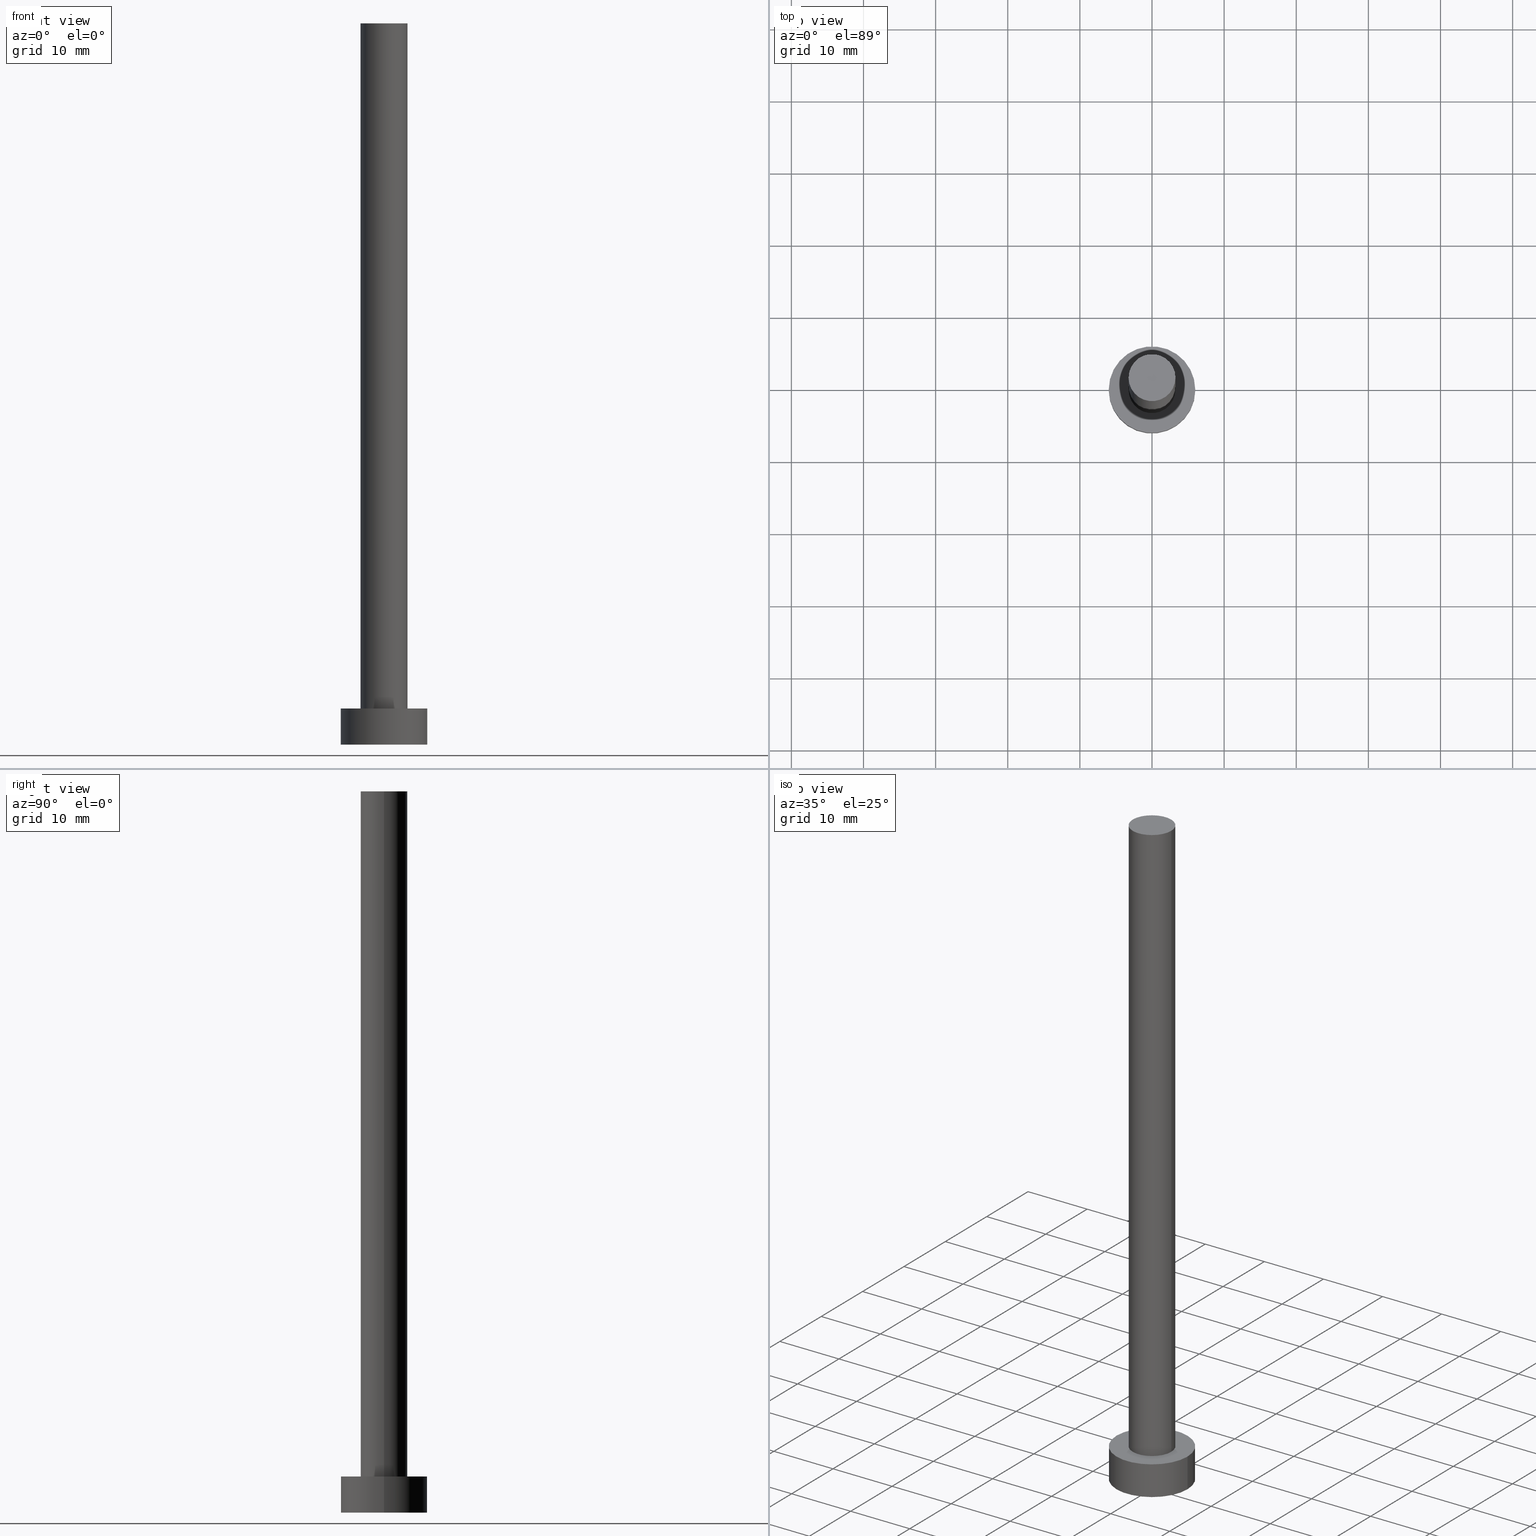
[diagram: canonical four-view strip — front | top / right | iso, engineering-drawing reading convention]
A machine part, canonical four-view strip (front | top / right | iso — engineering-drawing reading convention). The complete STEP part file that produces these views, byte-faithful:
ISO-10303-21;
HEADER;
FILE_DESCRIPTION (( 'STEP AP203' ),
    '1' );
FILE_NAME ('59e7.STEP',
    '2023-02-13T14:04:50',
    ( '' ),
    ( '' ),
    'SwSTEP 2.0',
    'SolidWorks 2019',
    '' );
FILE_SCHEMA (( 'CONFIG_CONTROL_DESIGN' ));
ENDSEC;

DATA;
#1 = AXIS2_PLACEMENT_3D ( 'NONE', #159, #96, #218 ) ;
#2 = DIRECTION ( 'NONE',  ( -0.000000000000000000, -0.000000000000000000, -1.000000000000000000 ) ) ;
#3 = CIRCLE ( 'NONE', #171, 6.000000000000000888 ) ;
#4 =( NAMED_UNIT ( * ) SI_UNIT ( $, .STERADIAN. ) SOLID_ANGLE_UNIT ( ) );
#5 = PRODUCT_RELATED_PRODUCT_CATEGORY ( 'detail', '', ( #63 ) ) ;
#6 = COORDINATED_UNIVERSAL_TIME_OFFSET ( 1, 0, .AHEAD. ) ;
#7 = DIRECTION ( 'NONE',  ( 1.000000000000000000, 0.000000000000000000, 0.000000000000000000 ) ) ;
#8 = PERSON ( 'NEUR�EN�', 'NEUR�EN�', 'NEUR�EN�', ('NEUR�EN�'), ('NEUR�EN�'), ('NEUR�EN�') ) ;
#9 = CIRCLE ( 'NONE', #192, 6.000000000000000888 ) ;
#10 = CC_DESIGN_APPROVAL ( #88, ( #158 ) ) ;
#11 = ORIENTED_EDGE ( 'NONE', *, *, #82, .T. ) ;
#12 = EDGE_CURVE ( 'NONE', #200, #25, #251, .T. ) ;
#13 = CARTESIAN_POINT ( 'NONE',  ( 0.000000000000000000, 0.000000000000000000, 0.000000000000000000 ) ) ;
#14 = CARTESIAN_POINT ( 'NONE',  ( 0.000000000000000000, 0.000000000000000000, 5.000000000000000000 ) ) ;
#15 = PERSON_AND_ORGANIZATION ( #8, #133 ) ;
#16 = PLANE ( 'NONE',  #100 ) ;
#17 = ADVANCED_FACE ( 'NONE', ( #115 ), #16, .T. ) ;
#18 = CIRCLE ( 'NONE', #142, 3.250000000000000444 ) ;
#19 = LOCAL_TIME ( 15, 4, 50.00000000000000000, #6 ) ;
#20 = FACE_BOUND ( 'NONE', #134, .T. ) ;
#21 = ORIENTED_EDGE ( 'NONE', *, *, #210, .T. ) ;
#22 = CC_DESIGN_DATE_AND_TIME_ASSIGNMENT ( #220, #62, ( #26 ) ) ;
#23 = COORDINATED_UNIVERSAL_TIME_OFFSET ( 1, 0, .AHEAD. ) ;
#24 = CYLINDRICAL_SURFACE ( 'NONE', #38, 3.250000000000000444 ) ;
#25 = VERTEX_POINT ( 'NONE', #214 ) ;
#26 = SECURITY_CLASSIFICATION ( '', '', #156 ) ;
#27 = PERSON_AND_ORGANIZATION ( #8, #133 ) ;
#28 = CARTESIAN_POINT ( 'NONE',  ( 0.000000000000000000, 0.000000000000000000, 5.000000000000000000 ) ) ;
#29 = CARTESIAN_POINT ( 'NONE',  ( 3.250000000000000444, 3.980102097228898231E-16, 100.0000000000000000 ) ) ;
#30 = APPROVAL_PERSON_ORGANIZATION ( #27, #120, #188 ) ;
#31 = EDGE_LOOP ( 'NONE', ( #11, #211 ) ) ;
#32 = PERSON_AND_ORGANIZATION ( #8, #133 ) ;
#33 = CC_DESIGN_APPROVAL ( #68, ( #198 ) ) ;
#34 = ORIENTED_EDGE ( 'NONE', *, *, #196, .F. ) ;
#35 = VERTEX_POINT ( 'NONE', #235 ) ;
#36 = DIRECTION ( 'NONE',  ( -0.000000000000000000, -0.000000000000000000, -1.000000000000000000 ) ) ;
#37 = CC_DESIGN_PERSON_AND_ORGANIZATION_ASSIGNMENT ( #202, #255, ( #26 ) ) ;
#38 = AXIS2_PLACEMENT_3D ( 'NONE', #140, #91, #72 ) ;
#39 = PRODUCT_DEFINITION_SHAPE ( 'NONE', 'NONE',  #158 ) ;
#40 = ORIENTED_EDGE ( 'NONE', *, *, #210, .F. ) ;
#41 = CARTESIAN_POINT ( 'NONE',  ( 0.000000000000000000, 0.000000000000000000, 5.000000000000000000 ) ) ;
#42 = APPROVAL_STATUS ( 'not_yet_approved' ) ;
#43 = DIRECTION ( 'NONE',  ( 1.000000000000000000, 0.000000000000000000, -0.000000000000000000 ) ) ;
#44 = FACE_OUTER_BOUND ( 'NONE', #195, .T. ) ;
#45 = ORIENTED_EDGE ( 'NONE', *, *, #104, .T. ) ;
#46 = FACE_OUTER_BOUND ( 'NONE', #74, .T. ) ;
#47 = DIRECTION ( 'NONE',  ( -0.000000000000000000, -0.000000000000000000, -1.000000000000000000 ) ) ;
#48 = EDGE_CURVE ( 'NONE', #224, #200, #92, .T. ) ;
#49 = EDGE_CURVE ( 'NONE', #65, #35, #106, .T. ) ;
#50 = APPLICATION_PROTOCOL_DEFINITION ( 'international standard', 'config_control_design', 1994, #153 ) ;
#51 = EDGE_LOOP ( 'NONE', ( #80, #154, #199, #71 ) ) ;
#52 = CARTESIAN_POINT ( 'NONE',  ( -3.250000000000000444, 0.000000000000000000, 100.0000000000000000 ) ) ;
#53 = PERSON_AND_ORGANIZATION_ROLE ( 'creator' ) ;
#54 = LINE ( 'NONE', #252, #136 ) ;
#55 = DIRECTION ( 'NONE',  ( 0.000000000000000000, 0.000000000000000000, 1.000000000000000000 ) ) ;
#56 = ADVANCED_BREP_SHAPE_REPRESENTATION ( '59e7', ( #162, #176 ), #83 ) ;
#57 = CALENDAR_DATE ( 2023, 13, 2 ) ;
#58 = CARTESIAN_POINT ( 'NONE',  ( -3.250000000000000444, 0.000000000000000000, 100.0000000000000000 ) ) ;
#59 = CALENDAR_DATE ( 2023, 13, 2 ) ;
#60 = DIRECTION ( 'NONE',  ( 1.000000000000000000, 0.000000000000000000, -0.000000000000000000 ) ) ;
#61 = CARTESIAN_POINT ( 'NONE',  ( 0.000000000000000000, 0.000000000000000000, 100.0000000000000000 ) ) ;
#62 = DATE_TIME_ROLE ( 'classification_date' ) ;
#63 = PRODUCT ( '59e7', '59e7', '', ( #254 ) ) ;
#64 = FACE_OUTER_BOUND ( 'NONE', #208, .T. ) ;
#65 = VERTEX_POINT ( 'NONE', #128 ) ;
#66 = DIRECTION ( 'NONE',  ( 0.000000000000000000, 0.000000000000000000, 1.000000000000000000 ) ) ;
#67 = UNCERTAINTY_MEASURE_WITH_UNIT (LENGTH_MEASURE( 1.000000000000000082E-05 ), #145, 'distance_accuracy_value', 'NONE');
#68 = APPROVAL ( #215, 'NEUR�EN�' ) ;
#69 = DATE_AND_TIME ( #101, #160 ) ;
#70 = VECTOR ( 'NONE', #237, 1000.000000000000000 ) ;
#71 = ORIENTED_EDGE ( 'NONE', *, *, #12, .F. ) ;
#72 = DIRECTION ( 'NONE',  ( -1.000000000000000000, 0.000000000000000000, 0.000000000000000000 ) ) ;
#73 = DATE_AND_TIME ( #57, #182 ) ;
#74 = EDGE_LOOP ( 'NONE', ( #187, #234, #184, #99 ) ) ;
#75 = LOCAL_TIME ( 15, 4, 50.00000000000000000, #107 ) ;
#76 = PERSON_AND_ORGANIZATION_ROLE ( 'design_supplier' ) ;
#77 = DIRECTION ( 'NONE',  ( 1.000000000000000000, 0.000000000000000000, -0.000000000000000000 ) ) ;
#78 = COORDINATED_UNIVERSAL_TIME_OFFSET ( 1, 0, .AHEAD. ) ;
#79 = LINE ( 'NONE', #213, #70 ) ;
#80 = ORIENTED_EDGE ( 'NONE', *, *, #48, .F. ) ;
#81 = COORDINATED_UNIVERSAL_TIME_OFFSET ( 1, 0, .AHEAD. ) ;
#82 = EDGE_CURVE ( 'NONE', #200, #224, #9, .T. ) ;
#83 =( GEOMETRIC_REPRESENTATION_CONTEXT ( 3 ) GLOBAL_UNCERTAINTY_ASSIGNED_CONTEXT ( ( #67 ) ) GLOBAL_UNIT_ASSIGNED_CONTEXT ( ( #145, #138, #4 ) ) REPRESENTATION_CONTEXT ( 'NONE', 'WORKASPACE' ) );
#84 = DIRECTION ( 'NONE',  ( 0.000000000000000000, 0.000000000000000000, 1.000000000000000000 ) ) ;
#85 = DATE_AND_TIME ( #193, #75 ) ;
#86 = DIRECTION ( 'NONE',  ( 1.000000000000000000, 0.000000000000000000, 0.000000000000000000 ) ) ;
#87 = CC_DESIGN_PERSON_AND_ORGANIZATION_ASSIGNMENT ( #194, #53, ( #198 ) ) ;
#88 = APPROVAL ( #122, 'NEUR�EN�' ) ;
#89 = AXIS2_PLACEMENT_3D ( 'NONE', #204, #84, #43 ) ;
#90 = PERSON_AND_ORGANIZATION ( #8, #133 ) ;
#91 = DIRECTION ( 'NONE',  ( -0.000000000000000000, -0.000000000000000000, -1.000000000000000000 ) ) ;
#92 = CIRCLE ( 'NONE', #1, 6.000000000000000888 ) ;
#93 = APPLICATION_PROTOCOL_DEFINITION ( 'international standard', 'config_control_design', 1994, #116 ) ;
#94 = DIRECTION ( 'NONE',  ( 0.000000000000000000, 0.000000000000000000, 1.000000000000000000 ) ) ;
#95 = ORIENTED_EDGE ( 'NONE', *, *, #127, .T. ) ;
#96 = DIRECTION ( 'NONE',  ( 0.000000000000000000, 0.000000000000000000, 1.000000000000000000 ) ) ;
#97 = APPROVAL_ROLE ( '' ) ;
#98 = FACE_OUTER_BOUND ( 'NONE', #31, .T. ) ;
#99 = ORIENTED_EDGE ( 'NONE', *, *, #175, .T. ) ;
#100 = AXIS2_PLACEMENT_3D ( 'NONE', #236, #94, #77 ) ;
#101 = CALENDAR_DATE ( 2023, 13, 2 ) ;
#102 = ORIENTED_EDGE ( 'NONE', *, *, #175, .F. ) ;
#103 = DIRECTION ( 'NONE',  ( -1.000000000000000000, 0.000000000000000000, 0.000000000000000000 ) ) ;
#104 = EDGE_CURVE ( 'NONE', #157, #178, #18, .T. ) ;
#105 = APPROVAL_ROLE ( '' ) ;
#106 = CIRCLE ( 'NONE', #244, 3.250000000000000444 ) ;
#107 = COORDINATED_UNIVERSAL_TIME_OFFSET ( 1, 0, .AHEAD. ) ;
#108 = CC_DESIGN_APPROVAL ( #120, ( #26 ) ) ;
#109 = CARTESIAN_POINT ( 'NONE',  ( 0.000000000000000000, 0.000000000000000000, 5.000000000000000000 ) ) ;
#110 = APPROVAL_DATE_TIME ( #73, #68 ) ;
#111 = ORIENTED_EDGE ( 'NONE', *, *, #207, .F. ) ;
#112 = PLANE ( 'NONE',  #152 ) ;
#113 = ADVANCED_FACE ( 'NONE', ( #44 ), #173, .T. ) ;
#114 = DIRECTION ( 'NONE',  ( 1.000000000000000000, 0.000000000000000000, 0.000000000000000000 ) ) ;
#115 = FACE_OUTER_BOUND ( 'NONE', #197, .T. ) ;
#116 = APPLICATION_CONTEXT ( 'configuration controlled 3d designs of mechanical parts and assemblies' ) ;
#117 = CARTESIAN_POINT ( 'NONE',  ( 6.000000000000000888, 7.347880794884120722E-16, 5.000000000000000000 ) ) ;
#118 = DIRECTION ( 'NONE',  ( 0.000000000000000000, 0.000000000000000000, 1.000000000000000000 ) ) ;
#119 = AXIS2_PLACEMENT_3D ( 'NONE', #109, #131, #216 ) ;
#120 = APPROVAL ( #42, 'NEUR�EN�' ) ;
#121 = CARTESIAN_POINT ( 'NONE',  ( 0.000000000000000000, 0.000000000000000000, 0.000000000000000000 ) ) ;
#122 = APPROVAL_STATUS ( 'not_yet_approved' ) ;
#123 = VECTOR ( 'NONE', #248, 1000.000000000000000 ) ;
#124 = CALENDAR_DATE ( 2023, 13, 2 ) ;
#125 = DIRECTION ( 'NONE',  ( -1.000000000000000000, 0.000000000000000000, 0.000000000000000000 ) ) ;
#126 = DIRECTION ( 'NONE',  ( 0.000000000000000000, 0.000000000000000000, 1.000000000000000000 ) ) ;
#127 = EDGE_CURVE ( 'NONE', #178, #157, #169, .T. ) ;
#128 = CARTESIAN_POINT ( 'NONE',  ( 3.250000000000000444, 3.980102097228898231E-16, 5.000000000000000000 ) ) ;
#129 = CARTESIAN_POINT ( 'NONE',  ( -6.000000000000000888, 0.000000000000000000, 5.000000000000000000 ) ) ;
#130 = EDGE_CURVE ( 'NONE', #178, #35, #170, .T. ) ;
#131 = DIRECTION ( 'NONE',  ( 0.000000000000000000, 0.000000000000000000, 1.000000000000000000 ) ) ;
#132 = AXIS2_PLACEMENT_3D ( 'NONE', #139, #2, #103 ) ;
#133 = ORGANIZATION ( 'NEUR�EN�', 'NEUR�EN�', '' ) ;
#134 = EDGE_LOOP ( 'NONE', ( #111, #166 ) ) ;
#135 = VECTOR ( 'NONE', #146, 1000.000000000000000 ) ;
#136 = VECTOR ( 'NONE', #36, 1000.000000000000000 ) ;
#137 = CC_DESIGN_PERSON_AND_ORGANIZATION_ASSIGNMENT ( #32, #76, ( #198 ) ) ;
#138 =( NAMED_UNIT ( * ) PLANE_ANGLE_UNIT ( ) SI_UNIT ( $, .RADIAN. ) );
#139 = CARTESIAN_POINT ( 'NONE',  ( 0.000000000000000000, 0.000000000000000000, 100.0000000000000000 ) ) ;
#140 = CARTESIAN_POINT ( 'NONE',  ( 0.000000000000000000, 0.000000000000000000, 100.0000000000000000 ) ) ;
#141 = ORIENTED_EDGE ( 'NONE', *, *, #104, .F. ) ;
#142 = AXIS2_PLACEMENT_3D ( 'NONE', #61, #223, #164 ) ;
#143 = CC_DESIGN_PERSON_AND_ORGANIZATION_ASSIGNMENT ( #15, #250, ( #63 ) ) ;
#144 = AXIS2_PLACEMENT_3D ( 'NONE', #28, #189, #165 ) ;
#145 =( LENGTH_UNIT ( ) NAMED_UNIT ( * ) SI_UNIT ( .MILLI., .METRE. ) );
#146 = DIRECTION ( 'NONE',  ( -0.000000000000000000, -0.000000000000000000, -1.000000000000000000 ) ) ;
#147 = ORIENTED_EDGE ( 'NONE', *, *, #130, .T. ) ;
#148 = CYLINDRICAL_SURFACE ( 'NONE', #239, 6.000000000000000888 ) ;
#149 = CARTESIAN_POINT ( 'NONE',  ( 0.000000000000000000, 0.000000000000000000, 5.000000000000000000 ) ) ;
#150 = CIRCLE ( 'NONE', #180, 6.000000000000000888 ) ;
#151 = APPROVAL_DATE_TIME ( #69, #120 ) ;
#152 = AXIS2_PLACEMENT_3D ( 'NONE', #14, #249, #60 ) ;
#153 = APPLICATION_CONTEXT ( 'configuration controlled 3d designs of mechanical parts and assemblies' ) ;
#154 = ORIENTED_EDGE ( 'NONE', *, *, #212, .T. ) ;
#155 = PERSON_AND_ORGANIZATION ( #8, #133 ) ;
#156 = SECURITY_CLASSIFICATION_LEVEL ( 'unclassified' ) ;
#157 = VERTEX_POINT ( 'NONE', #29 ) ;
#158 = PRODUCT_DEFINITION ( 'NEZN�M�', '', #198, #226 ) ;
#159 = CARTESIAN_POINT ( 'NONE',  ( 0.000000000000000000, 0.000000000000000000, 5.000000000000000000 ) ) ;
#160 = LOCAL_TIME ( 15, 4, 50.00000000000000000, #23 ) ;
#161 = ADVANCED_FACE ( 'NONE', ( #46 ), #148, .T. ) ;
#162 = MANIFOLD_SOLID_BREP ( 'P�idat vysunut�m3', #227 ) ;
#163 = CYLINDRICAL_SURFACE ( 'NONE', #144, 6.000000000000000888 ) ;
#164 = DIRECTION ( 'NONE',  ( 1.000000000000000000, 0.000000000000000000, 0.000000000000000000 ) ) ;
#165 = DIRECTION ( 'NONE',  ( -1.000000000000000000, 0.000000000000000000, 0.000000000000000000 ) ) ;
#166 = ORIENTED_EDGE ( 'NONE', *, *, #49, .F. ) ;
#167 = CC_DESIGN_PERSON_AND_ORGANIZATION_ASSIGNMENT ( #174, #209, ( #158 ) ) ;
#168 = CARTESIAN_POINT ( 'NONE',  ( 0.000000000000000000, 0.000000000000000000, 100.0000000000000000 ) ) ;
#169 = CIRCLE ( 'NONE', #246, 3.250000000000000444 ) ;
#170 = LINE ( 'NONE', #58, #135 ) ;
#171 = AXIS2_PLACEMENT_3D ( 'NONE', #13, #242, #7 ) ;
#172 = ORIENTED_EDGE ( 'NONE', *, *, #127, .F. ) ;
#173 = CYLINDRICAL_SURFACE ( 'NONE', #132, 3.250000000000000444 ) ;
#174 = PERSON_AND_ORGANIZATION ( #8, #133 ) ;
#175 = EDGE_CURVE ( 'NONE', #25, #177, #150, .T. ) ;
#176 = AXIS2_PLACEMENT_3D ( 'NONE', #238, #118, #114 ) ;
#177 = VERTEX_POINT ( 'NONE', #179 ) ;
#178 = VERTEX_POINT ( 'NONE', #52 ) ;
#179 = CARTESIAN_POINT ( 'NONE',  ( 6.000000000000000888, 7.347880794884120722E-16, 0.000000000000000000 ) ) ;
#180 = AXIS2_PLACEMENT_3D ( 'NONE', #121, #219, #201 ) ;
#181 = CARTESIAN_POINT ( 'NONE',  ( -6.000000000000000888, 0.000000000000000000, 5.000000000000000000 ) ) ;
#182 = LOCAL_TIME ( 15, 4, 50.00000000000000000, #78 ) ;
#183 = ORIENTED_EDGE ( 'NONE', *, *, #207, .T. ) ;
#184 = ORIENTED_EDGE ( 'NONE', *, *, #12, .T. ) ;
#185 = DIRECTION ( 'NONE',  ( 1.000000000000000000, 0.000000000000000000, 0.000000000000000000 ) ) ;
#186 = ADVANCED_FACE ( 'NONE', ( #245 ), #24, .T. ) ;
#187 = ORIENTED_EDGE ( 'NONE', *, *, #212, .F. ) ;
#188 = APPROVAL_ROLE ( '' ) ;
#189 = DIRECTION ( 'NONE',  ( -0.000000000000000000, -0.000000000000000000, -1.000000000000000000 ) ) ;
#190 = APPROVAL_PERSON_ORGANIZATION ( #155, #88, #105 ) ;
#191 = DATE_AND_TIME ( #124, #19 ) ;
#192 = AXIS2_PLACEMENT_3D ( 'NONE', #41, #55, #253 ) ;
#193 = CALENDAR_DATE ( 2023, 13, 2 ) ;
#194 = PERSON_AND_ORGANIZATION ( #8, #133 ) ;
#195 = EDGE_LOOP ( 'NONE', ( #141, #21, #233, #231 ) ) ;
#196 = EDGE_CURVE ( 'NONE', #177, #25, #3, .T. ) ;
#197 = EDGE_LOOP ( 'NONE', ( #95, #45 ) ) ;
#198 = PRODUCT_DEFINITION_FORMATION_WITH_SPECIFIED_SOURCE ( 'LIBOVOLN�', '', #63, .NOT_KNOWN. ) ;
#199 = ORIENTED_EDGE ( 'NONE', *, *, #196, .T. ) ;
#200 = VERTEX_POINT ( 'NONE', #129 ) ;
#201 = DIRECTION ( 'NONE',  ( 1.000000000000000000, 0.000000000000000000, 0.000000000000000000 ) ) ;
#202 = PERSON_AND_ORGANIZATION ( #8, #133 ) ;
#203 = CIRCLE ( 'NONE', #119, 3.250000000000000444 ) ;
#204 = CARTESIAN_POINT ( 'NONE',  ( 0.000000000000000000, 0.000000000000000000, 0.000000000000000000 ) ) ;
#205 = DATE_TIME_ROLE ( 'creation_date' ) ;
#206 = FACE_OUTER_BOUND ( 'NONE', #51, .T. ) ;
#207 = EDGE_CURVE ( 'NONE', #35, #65, #203, .T. ) ;
#208 = EDGE_LOOP ( 'NONE', ( #102, #34 ) ) ;
#209 = PERSON_AND_ORGANIZATION_ROLE ( 'creator' ) ;
#210 = EDGE_CURVE ( 'NONE', #157, #65, #54, .T. ) ;
#211 = ORIENTED_EDGE ( 'NONE', *, *, #48, .T. ) ;
#212 = EDGE_CURVE ( 'NONE', #224, #177, #79, .T. ) ;
#213 = CARTESIAN_POINT ( 'NONE',  ( 6.000000000000000888, 7.347880794884120722E-16, 5.000000000000000000 ) ) ;
#214 = CARTESIAN_POINT ( 'NONE',  ( -6.000000000000000888, 0.000000000000000000, 0.000000000000000000 ) ) ;
#215 = APPROVAL_STATUS ( 'not_yet_approved' ) ;
#216 = DIRECTION ( 'NONE',  ( 1.000000000000000000, 0.000000000000000000, 0.000000000000000000 ) ) ;
#217 = APPROVAL_PERSON_ORGANIZATION ( #90, #68, #97 ) ;
#218 = DIRECTION ( 'NONE',  ( 1.000000000000000000, 0.000000000000000000, 0.000000000000000000 ) ) ;
#219 = DIRECTION ( 'NONE',  ( 0.000000000000000000, 0.000000000000000000, 1.000000000000000000 ) ) ;
#220 = DATE_AND_TIME ( #59, #247 ) ;
#221 = PLANE ( 'NONE',  #89 ) ;
#222 = EDGE_LOOP ( 'NONE', ( #40, #172, #147, #183 ) ) ;
#223 = DIRECTION ( 'NONE',  ( 0.000000000000000000, 0.000000000000000000, 1.000000000000000000 ) ) ;
#224 = VERTEX_POINT ( 'NONE', #117 ) ;
#225 = CARTESIAN_POINT ( 'NONE',  ( 0.000000000000000000, 0.000000000000000000, 5.000000000000000000 ) ) ;
#226 = DESIGN_CONTEXT ( 'detailed design', #116, 'design' ) ;
#227 = CLOSED_SHELL ( 'NONE', ( #113, #240, #161, #232, #243, #186, #17 ) ) ;
#228 = APPROVAL_DATE_TIME ( #191, #88 ) ;
#229 = CC_DESIGN_SECURITY_CLASSIFICATION ( #26, ( #198 ) ) ;
#230 = SHAPE_DEFINITION_REPRESENTATION ( #39, #56 ) ;
#231 = ORIENTED_EDGE ( 'NONE', *, *, #130, .F. ) ;
#232 = ADVANCED_FACE ( 'NONE', ( #20, #98 ), #112, .T. ) ;
#233 = ORIENTED_EDGE ( 'NONE', *, *, #49, .T. ) ;
#234 = ORIENTED_EDGE ( 'NONE', *, *, #82, .F. ) ;
#235 = CARTESIAN_POINT ( 'NONE',  ( -3.250000000000000444, 0.000000000000000000, 5.000000000000000000 ) ) ;
#236 = CARTESIAN_POINT ( 'NONE',  ( 0.000000000000000000, 0.000000000000000000, 100.0000000000000000 ) ) ;
#237 = DIRECTION ( 'NONE',  ( -0.000000000000000000, -0.000000000000000000, -1.000000000000000000 ) ) ;
#238 = CARTESIAN_POINT ( 'NONE',  ( 0.000000000000000000, 0.000000000000000000, 0.000000000000000000 ) ) ;
#239 = AXIS2_PLACEMENT_3D ( 'NONE', #225, #47, #125 ) ;
#240 = ADVANCED_FACE ( 'NONE', ( #206 ), #163, .T. ) ;
#241 = CC_DESIGN_DATE_AND_TIME_ASSIGNMENT ( #85, #205, ( #158 ) ) ;
#242 = DIRECTION ( 'NONE',  ( 0.000000000000000000, 0.000000000000000000, 1.000000000000000000 ) ) ;
#243 = ADVANCED_FACE ( 'NONE', ( #64 ), #221, .F. ) ;
#244 = AXIS2_PLACEMENT_3D ( 'NONE', #149, #126, #185 ) ;
#245 = FACE_OUTER_BOUND ( 'NONE', #222, .T. ) ;
#246 = AXIS2_PLACEMENT_3D ( 'NONE', #168, #66, #86 ) ;
#247 = LOCAL_TIME ( 15, 4, 50.00000000000000000, #81 ) ;
#248 = DIRECTION ( 'NONE',  ( -0.000000000000000000, -0.000000000000000000, -1.000000000000000000 ) ) ;
#249 = DIRECTION ( 'NONE',  ( 0.000000000000000000, 0.000000000000000000, 1.000000000000000000 ) ) ;
#250 = PERSON_AND_ORGANIZATION_ROLE ( 'design_owner' ) ;
#251 = LINE ( 'NONE', #181, #123 ) ;
#252 = CARTESIAN_POINT ( 'NONE',  ( 3.250000000000000444, 3.980102097228898231E-16, 100.0000000000000000 ) ) ;
#253 = DIRECTION ( 'NONE',  ( 1.000000000000000000, 0.000000000000000000, 0.000000000000000000 ) ) ;
#254 = MECHANICAL_CONTEXT ( 'NONE', #153, 'mechanical' ) ;
#255 = PERSON_AND_ORGANIZATION_ROLE ( 'classification_officer' ) ;
ENDSEC;
END-ISO-10303-21;
